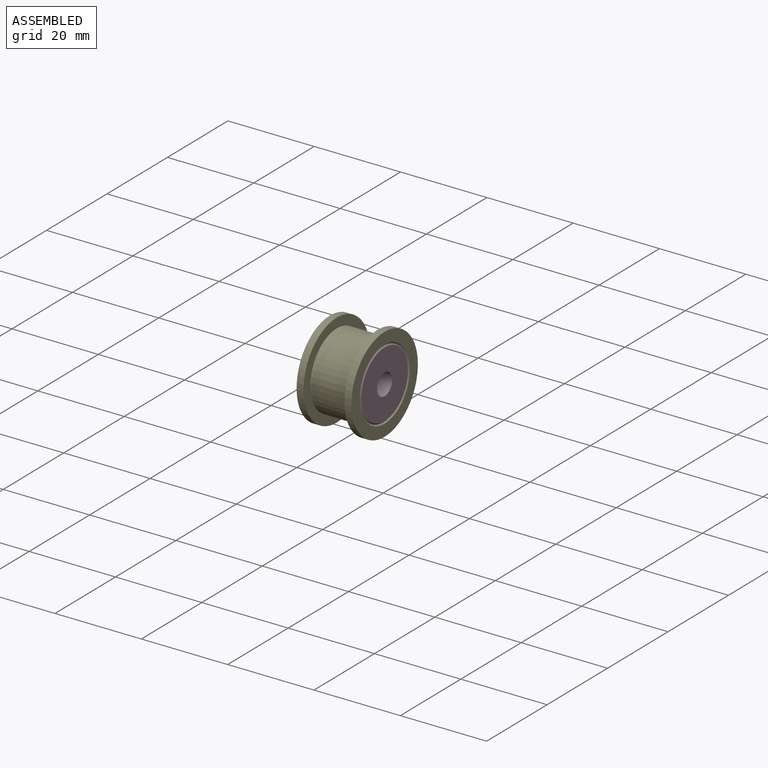
[diagram: assembled view]
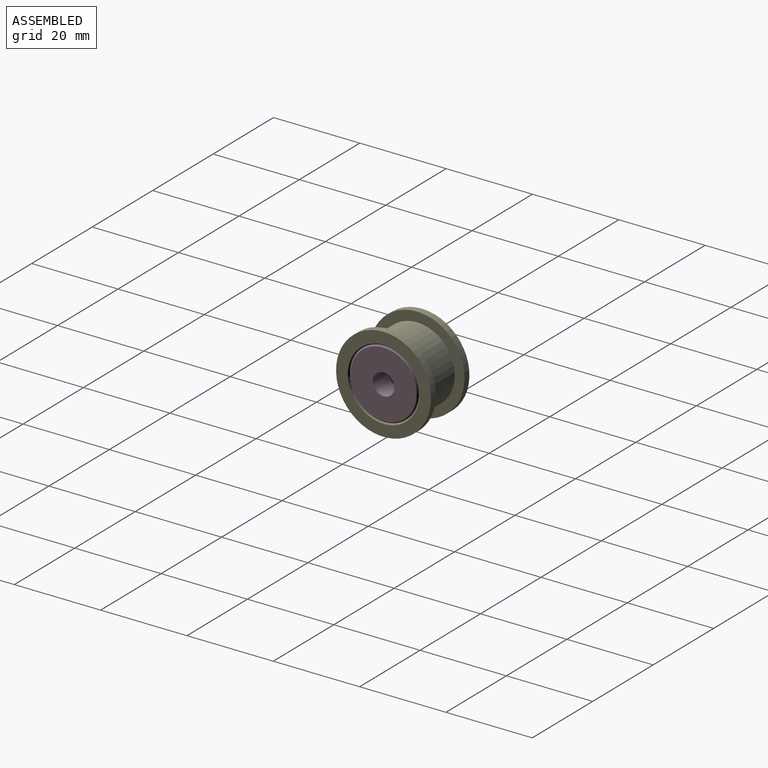
[diagram: assembled view, second angle]
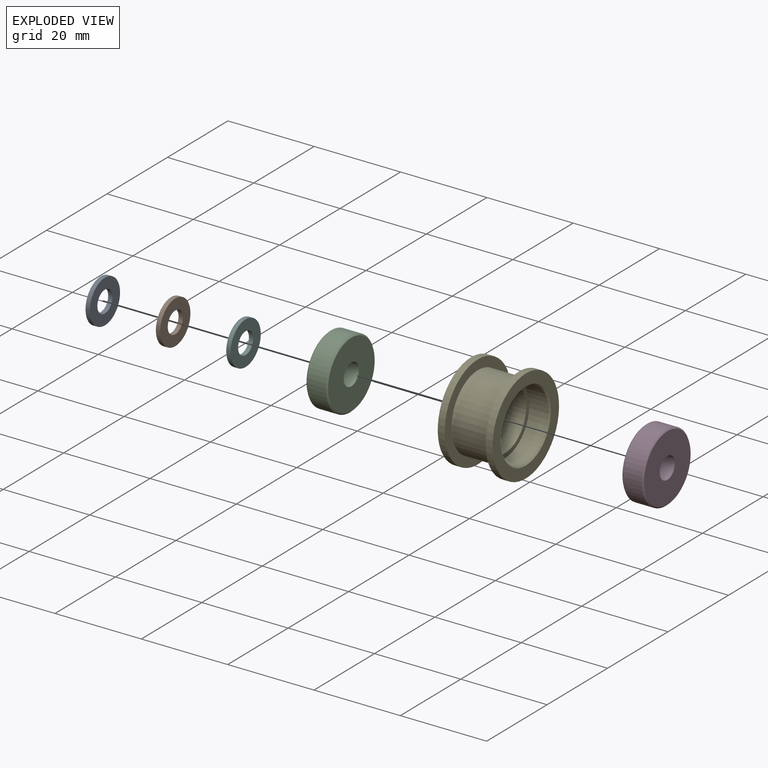
[diagram: exploded view]
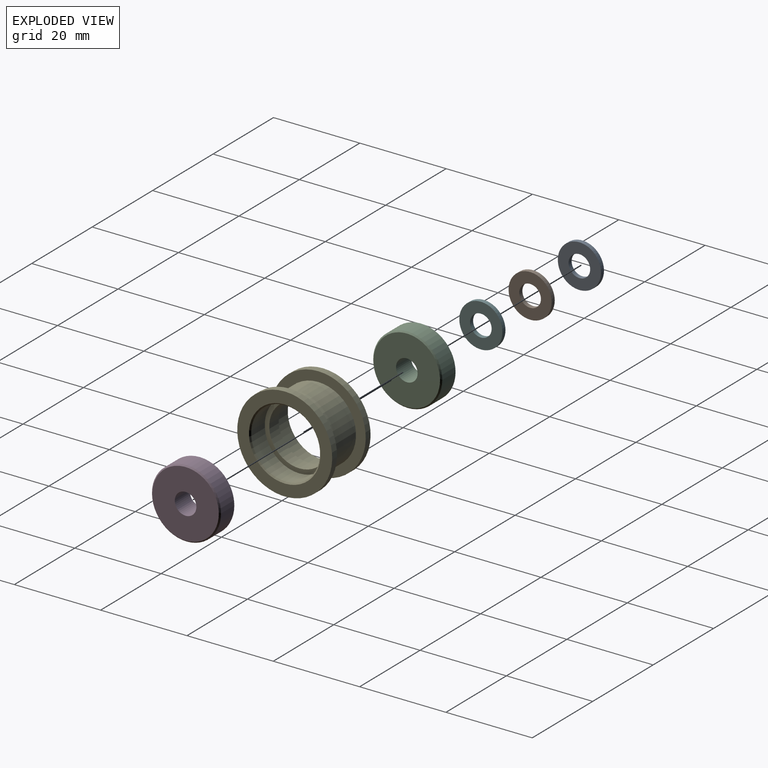
[diagram: exploded view, second angle]
ASSEMBLY  parts=6 mates=5
PART A: 4 faces, bbox 1x10x10 mm
  f0: cylinder r=2.5mm len=5mm, axis (-1,0,0), area 15.7mm2, adj f2,f3
  f1: cylinder r=5mm len=10mm, axis (-1,0,0), area 31.4mm2, adj f2,f3
  f2: plane 10x10mm, normal (1,0,0), area 58.9mm2, adj f0,f1
  f3: plane 10x10mm, normal (-1,0,0), area 58.9mm2, adj f0,f1
PART B: same geometry as A
PART C: 6 faces, bbox 5x16x16 mm
  f0: cylinder r=8mm len=16mm, axis (-1,0,0), area 221.2mm2, adj f4,f5
  f1: cylinder r=2.5mm len=5mm, axis (-1,0,0), area 78.5mm2, adj f2,f3
  f2: plane 15.4x15.4mm, normal (1,0,0), area 166.6mm2, adj f1,f5
  f3: plane 15.4x15.4mm, normal (-1,0,0), area 166.6mm2, adj f1,f4
  f4: cone r=8mm half-angle=45deg, axis (1,0,0), area 20.9mm2, adj f0,f3
  f5: cone r=7.7mm half-angle=45deg, axis (-1,0,0), area 20.9mm2, adj f0,f2
PART D: same geometry as C
PART E: 14 faces, bbox 12.7x22x22 mm
  f0: cylinder r=7.99mm len=15.97mm, axis (-1,0,0), area 225.8mm2, adj f1,f13
  f1: plane 15.97x15.97mm, normal (-1,0,0), area 48.9mm2, adj f0,f2
  f2: cylinder r=6.94mm len=13.89mm, axis (-1,0,0), area 135.3mm2, adj f1,f3
  f3: plane 15.97x15.97mm, normal (1,0,0), area 48.9mm2, adj f2,f4
  f4: cylinder r=7.99mm len=15.97mm, axis (-1,0,0), area 225.8mm2, adj f3,f12
  f5: plane 22x22mm, normal (1,0,0), area 164.4mm2, adj f6,f12
  f6: cylinder r=11mm len=22mm, axis (-1,0,0), area 110.6mm2, adj f5,f7
  f7: plane 22x22mm, normal (-1,0,0), area 139.6mm2, adj f6,f8
  f8: cylinder r=8.75mm len=17.5mm, axis (-1,0,0), area 522.3mm2, adj f7,f9
  f9: plane 22x22mm, normal (1,0,0), area 139.6mm2, adj f8,f10
  f10: cylinder r=11mm len=22mm, axis (-1,0,0), area 110.6mm2, adj f9,f11
  f11: plane 22x22mm, normal (-1,0,0), area 164.4mm2, adj f10,f13
  f12: cone r=8.29mm half-angle=45deg, axis (1,0,0), area 21.7mm2, adj f4,f5
  f13: cone r=7.99mm half-angle=45deg, axis (-1,0,0), area 21.7mm2, adj f0,f11
PART F: same geometry as A
PLACE A t=(-9.34,-0.02,-0.03)mm
PLACE B t=(-8.34,-0.02,-0.03)mm
PLACE C t=(-6.34,-0.02,-0.03)mm
PLACE D t=(1.36,-0.02,-0.03)mm
PLACE E t=(0.01,-0.02,6.91)mm
PLACE F t=(-7.34,-0.02,-0.03)mm
MATE fastened D.f0 <-> E.f0  axis (1,0,0) through (6.36,-0.02,-0.03)mm
MATE fastened A.f0 <-> B.f0  axis (1,0,0) through (-8.34,-0.02,-0.03)mm
MATE fastened C.f0 <-> E.f0  axis (-1,0,0) through (-6.34,-0.02,-0.03)mm
MATE fastened B.f0 <-> F.f0  axis (1,0,0) through (-7.34,-0.02,-0.03)mm
MATE fastened F.f0 <-> C.f0  axis (1,0,0) through (-6.34,-0.02,-0.03)mm
